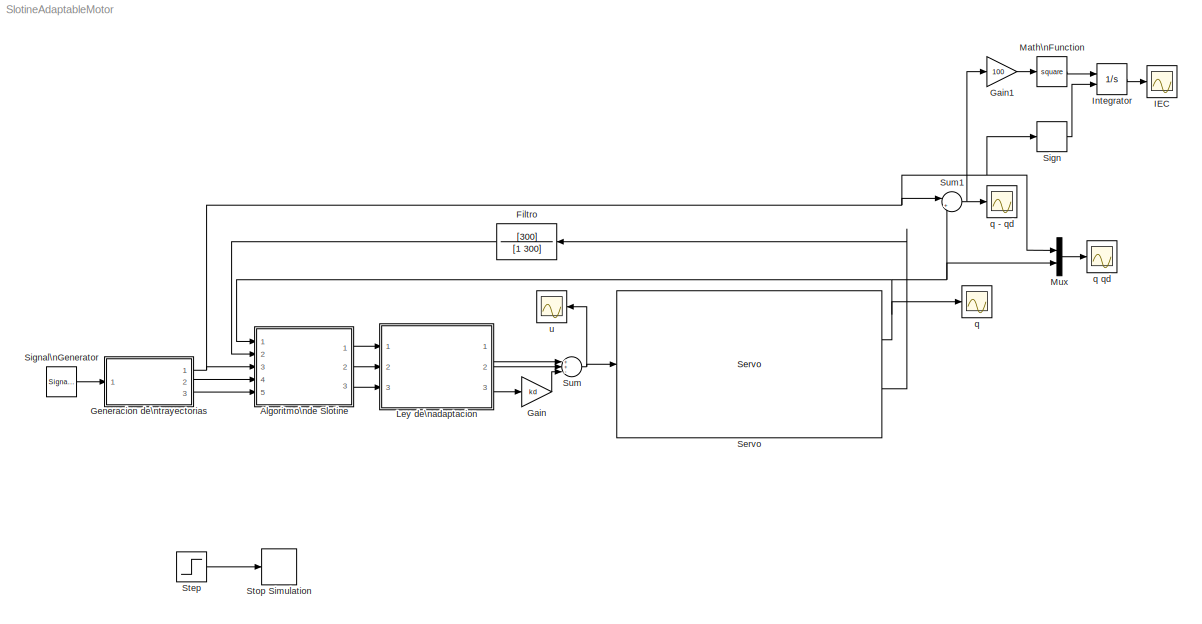
MODEL SlotineAdaptableMotor
KIND model
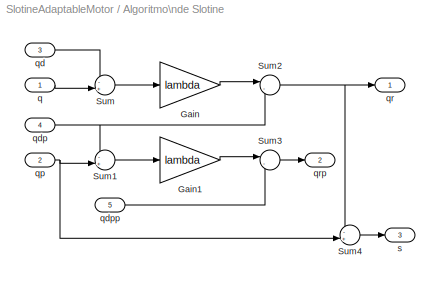
BLOCK [SubSystem] Algoritmo\nde Slotine
  FunctionWithSeparateData = off
  MaskHideContents = off
  MinAlgLoopOccurrences = off
  Ports = [5, 3]
  RTWSystemCode = Auto
BLOCK [Gain] Algoritmo\nde Slotine/Gain
  Gain = lambda
  OutDataTypeMode = Inherit via internal rule
  ParameterDataTypeMode = Inherit via internal rule
  SaturateOnIntegerOverflow = off
BLOCK [Gain] Algoritmo\nde Slotine/Gain1
  Gain = lambda
  OutDataTypeMode = Inherit via internal rule
  ParameterDataTypeMode = Inherit via internal rule
  SaturateOnIntegerOverflow = off
BLOCK [Sum] Algoritmo\nde Slotine/Sum
  CollapseMode = All dimensions
  IconShape = round
  InputSameDT = off
  Inputs = -+|
  OutDataTypeMode = Inherit via internal rule
  Ports = [2, 1]
  SaturateOnIntegerOverflow = off
BLOCK [Sum] Algoritmo\nde Slotine/Sum1
  CollapseMode = All dimensions
  IconShape = round
  InputSameDT = off
  Inputs = -+|
  OutDataTypeMode = Inherit via internal rule
  Ports = [2, 1]
  SaturateOnIntegerOverflow = off
BLOCK [Sum] Algoritmo\nde Slotine/Sum2
  CollapseMode = All dimensions
  IconShape = round
  InputSameDT = off
  Inputs = |-+
  OutDataTypeMode = Inherit via internal rule
  Ports = [2, 1]
  SaturateOnIntegerOverflow = off
BLOCK [Sum] Algoritmo\nde Slotine/Sum3
  CollapseMode = All dimensions
  IconShape = round
  InputSameDT = off
  Inputs = |-+
  OutDataTypeMode = Inherit via internal rule
  Ports = [2, 1]
  SaturateOnIntegerOverflow = off
BLOCK [Sum] Algoritmo\nde Slotine/Sum4
  CollapseMode = All dimensions
  IconShape = round
  InputSameDT = off
  Inputs = -+|
  OutDataTypeMode = Inherit via internal rule
  Ports = [2, 1]
  SaturateOnIntegerOverflow = off
BLOCK [Inport] Algoritmo\nde Slotine/q
  IconDisplay = Port number
BLOCK [Inport] Algoritmo\nde Slotine/qd
  IconDisplay = Port number
  Port = 3
BLOCK [Inport] Algoritmo\nde Slotine/qdp
  IconDisplay = Port number
  Port = 4
BLOCK [Inport] Algoritmo\nde Slotine/qdpp
  IconDisplay = Port number
  Port = 5
BLOCK [Inport] Algoritmo\nde Slotine/qp
  IconDisplay = Port number
  Port = 2
BLOCK [Outport] Algoritmo\nde Slotine/qr
  BusOutputAsStruct = off
  IconDisplay = Port number
BLOCK [Outport] Algoritmo\nde Slotine/qrp
  BusOutputAsStruct = off
  IconDisplay = Port number
  Port = 2
BLOCK [Outport] Algoritmo\nde Slotine/s
  BusOutputAsStruct = off
  IconDisplay = Port number
  Port = 3
BLOCK [TransferFcn] Filtro
  Denominator = [1 300]
  Numerator = [300]
BLOCK [Gain] Gain
  Gain = kd
  OutDataTypeMode = Inherit via internal rule
  ParameterDataTypeMode = Inherit via internal rule
  SaturateOnIntegerOverflow = off
BLOCK [Gain] Gain1
  Gain = 100
  OutDataTypeMode = Inherit via internal rule
  ParameterDataTypeMode = Inherit via internal rule
  SaturateOnIntegerOverflow = off
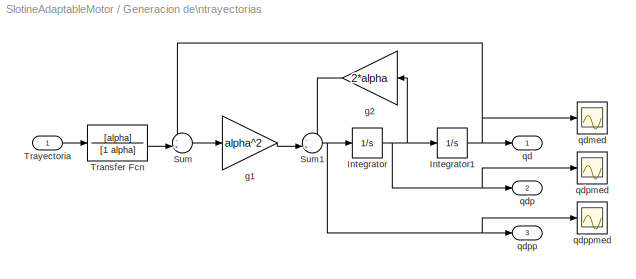
BLOCK [SubSystem] Generacion de\ntrayectorias
  FunctionWithSeparateData = off
  MaskHideContents = off
  MinAlgLoopOccurrences = off
  Ports = [1, 3]
  RTWSystemCode = Auto
BLOCK [Integrator] Generacion de\ntrayectorias/Integrator
  IgnoreLimit = off
  Ports = [1, 1]
BLOCK [Integrator] Generacion de\ntrayectorias/Integrator1
  IgnoreLimit = off
  Ports = [1, 1]
BLOCK [Sum] Generacion de\ntrayectorias/Sum
  CollapseMode = All dimensions
  IconShape = round
  InputSameDT = off
  Inputs = -+|
  OutDataTypeMode = Inherit via internal rule
  Ports = [2, 1]
  SaturateOnIntegerOverflow = off
BLOCK [Sum] Generacion de\ntrayectorias/Sum1
  CollapseMode = All dimensions
  IconShape = round
  InputSameDT = off
  Inputs = -+|
  OutDataTypeMode = Inherit via internal rule
  Ports = [2, 1]
  SaturateOnIntegerOverflow = off
BLOCK [TransferFcn] Generacion de\ntrayectorias/Transfer Fcn
  Denominator = [1 alpha]
  Numerator = [alpha]
BLOCK [Inport] Generacion de\ntrayectorias/Trayectoria
  IconDisplay = Port number
BLOCK [Gain] Generacion de\ntrayectorias/g1
  Gain = alpha^2
  OutDataTypeMode = Inherit via internal rule
  ParameterDataTypeMode = Inherit via internal rule
  SaturateOnIntegerOverflow = off
BLOCK [Gain] Generacion de\ntrayectorias/g2
  Gain = 2*alpha
  OutDataTypeMode = Inherit via internal rule
  ParameterDataTypeMode = Inherit via internal rule
  SaturateOnIntegerOverflow = off
BLOCK [Outport] Generacion de\ntrayectorias/qd
  BusOutputAsStruct = off
  IconDisplay = Port number
BLOCK [Scope] Generacion de\ntrayectorias/qdmed
  DataFormat = StructureWithTime
  Floating = off
  NumInputPorts = 1
  Ports = [1]
  SampleTime = 0
  SaveName = ScopeData5
BLOCK [Outport] Generacion de\ntrayectorias/qdp
  BusOutputAsStruct = off
  IconDisplay = Port number
  Port = 2
BLOCK [Scope] Generacion de\ntrayectorias/qdpmed
  DataFormat = StructureWithTime
  Floating = off
  NumInputPorts = 1
  Ports = [1]
  SampleTime = 0
  SaveName = ScopeData6
BLOCK [Outport] Generacion de\ntrayectorias/qdpp
  BusOutputAsStruct = off
  IconDisplay = Port number
  Port = 3
BLOCK [Scope] Generacion de\ntrayectorias/qdppmed
  DataFormat = StructureWithTime
  Floating = off
  NumInputPorts = 1
  Ports = [1]
  SampleTime = 0
  SaveName = ScopeData7
BLOCK [Scope] IEC
  DataFormat = StructureWithTime
  Floating = off
  NumInputPorts = 1
  Ports = [1]
  SampleTime = 0
  SaveName = ScopeData9
BLOCK [Integrator] Integrator
  ExternalReset = rising
  IgnoreLimit = off
  Ports = [2, 1]
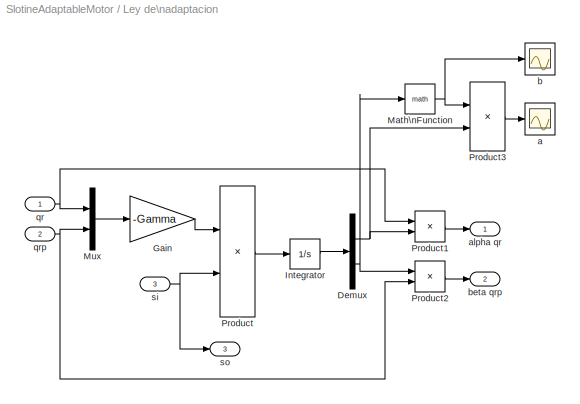
BLOCK [SubSystem] Ley de\nadaptacion
  FunctionWithSeparateData = off
  MaskHideContents = off
  MinAlgLoopOccurrences = off
  Ports = [3, 3]
  RTWSystemCode = Auto
BLOCK [Demux] Ley de\nadaptacion/Demux
  DisplayOption = bar
  Outputs = 2
  Ports = [1, 2]
BLOCK [Gain] Ley de\nadaptacion/Gain
  Gain = -Gamma
  OutDataTypeMode = Inherit via internal rule
  ParameterDataTypeMode = Inherit via internal rule
  SaturateOnIntegerOverflow = off
BLOCK [Integrator] Ley de\nadaptacion/Integrator
  IgnoreLimit = off
  Ports = [1, 1]
BLOCK [Math] Ley de\nadaptacion/Math\nFunction
  Ports = [1, 1]
BLOCK [Mux] Ley de\nadaptacion/Mux
  DisplayOption = bar
  Inputs = 2
  Ports = [2, 1]
BLOCK [Product] Ley de\nadaptacion/Product
  CollapseMode = All dimensions
  InputSameDT = off
  OutDataTypeMode = Inherit via internal rule
  Ports = [2, 1]
  SaturateOnIntegerOverflow = off
BLOCK [Product] Ley de\nadaptacion/Product1
  CollapseMode = All dimensions
  InputSameDT = off
  OutDataTypeMode = Inherit via internal rule
  Ports = [2, 1]
  SaturateOnIntegerOverflow = off
BLOCK [Product] Ley de\nadaptacion/Product2
  CollapseMode = All dimensions
  InputSameDT = off
  OutDataTypeMode = Inherit via internal rule
  Ports = [2, 1]
  SaturateOnIntegerOverflow = off
BLOCK [Product] Ley de\nadaptacion/Product3
  CollapseMode = All dimensions
  InputSameDT = off
  OutDataTypeMode = Inherit via internal rule
  Ports = [2, 1]
  SaturateOnIntegerOverflow = off
BLOCK [Scope] Ley de\nadaptacion/a
  DataFormat = StructureWithTime
  Floating = off
  NumInputPorts = 1
  Ports = [1]
  SampleTime = 0
  SaveName = ScopeData1
BLOCK [Outport] Ley de\nadaptacion/alpha qr
  BusOutputAsStruct = off
  IconDisplay = Port number
BLOCK [Scope] Ley de\nadaptacion/b
  DataFormat = StructureWithTime
  Floating = off
  NumInputPorts = 1
  Ports = [1]
  SampleTime = 0
BLOCK [Outport] Ley de\nadaptacion/beta qrp
  BusOutputAsStruct = off
  IconDisplay = Port number
  Port = 2
BLOCK [Inport] Ley de\nadaptacion/qr
  IconDisplay = Port number
BLOCK [Inport] Ley de\nadaptacion/qrp
  IconDisplay = Port number
  Port = 2
BLOCK [Inport] Ley de\nadaptacion/si
  IconDisplay = Port number
  Port = 3
BLOCK [Outport] Ley de\nadaptacion/so
  BusOutputAsStruct = off
  IconDisplay = Port number
  Port = 3
BLOCK [Math] Math\nFunction
  Operator = square
  Ports = [1, 1]
BLOCK [Mux] Mux
  DisplayOption = bar
  Inputs = 2
  Ports = [2, 1]
BLOCK [Reference] Servo  REF=Plantilla_Servo_2014/Servo
  FunctionWithSeparateData = off
  Ports = [1, 2]
  RTWMemSecDataConstants = Inherit from model
  RTWMemSecDataInternal = Inherit from model
  RTWMemSecDataParameters = Inherit from model
  RTWMemSecFuncExecute = Inherit from model
  RTWMemSecFuncInitTerm = Inherit from model
  ShowPortLabels = FromPortIcon
  SourceBlock = Plantilla_Servo_2014/Servo
  SourceType = SubSystem
  SystemSampleTime = -1
BLOCK [Signum] Sign
BLOCK [SignalGenerator] Signal\nGenerator
  Amplitude = 0.5
  Frequency = 0.5
  Ports = [0, 1]
BLOCK [Step] Step
  SampleTime = 0
  Time = 10
BLOCK [Stop] Stop Simulation
BLOCK [Sum] Sum
  CollapseMode = All dimensions
  IconShape = round
  InputSameDT = off
  Inputs = ++-
  OutDataTypeMode = Inherit via internal rule
  Ports = [3, 1]
  SaturateOnIntegerOverflow = off
BLOCK [Sum] Sum1
  CollapseMode = All dimensions
  IconShape = round
  InputSameDT = off
  Inputs = |+-
  OutDataTypeMode = Inherit via internal rule
  Ports = [2, 1]
  SaturateOnIntegerOverflow = off
BLOCK [Scope] q
  DataFormat = StructureWithTime
  Floating = off
  NumInputPorts = 1
  Ports = [1]
  SampleTime = 0
  SaveName = ScopeData8
BLOCK [Scope] q - qd
  DataFormat = StructureWithTime
  Floating = off
  NumInputPorts = 1
  Ports = [1]
  SampleTime = 0
  SaveName = ScopeData2
BLOCK [Scope] q qd
  DataFormat = StructureWithTime
  Floating = off
  NumInputPorts = 1
  Ports = [1]
  SampleTime = 0
  SaveName = ScopeData4
BLOCK [Scope] u
  DataFormat = StructureWithTime
  Floating = off
  NumInputPorts = 1
  Ports = [1]
  SampleTime = 0
  SaveName = ScopeData3
LINE Algoritmo\nde Slotine/Gain1:1 -> Algoritmo\nde Slotine/Sum3:1
LINE Algoritmo\nde Slotine/Gain:1 -> Algoritmo\nde Slotine/Sum2:1
LINE Algoritmo\nde Slotine/Sum1:1 -> Algoritmo\nde Slotine/Gain1:1
NET Algoritmo\nde Slotine/Sum2:1 -> Algoritmo\nde Slotine/Sum4:1, Algoritmo\nde Slotine/qr:1
LINE Algoritmo\nde Slotine/Sum3:1 -> Algoritmo\nde Slotine/qrp:1
LINE Algoritmo\nde Slotine/Sum4:1 -> Algoritmo\nde Slotine/s:1
LINE Algoritmo\nde Slotine/Sum:1 -> Algoritmo\nde Slotine/Gain:1
LINE Algoritmo\nde Slotine/q:1 -> Algoritmo\nde Slotine/Sum:2
LINE Algoritmo\nde Slotine/qd:1 -> Algoritmo\nde Slotine/Sum:1
NET Algoritmo\nde Slotine/qdp:1 -> Algoritmo\nde Slotine/Sum1:1, Algoritmo\nde Slotine/Sum2:2
LINE Algoritmo\nde Slotine/qdpp:1 -> Algoritmo\nde Slotine/Sum3:2
NET Algoritmo\nde Slotine/qp:1 -> Algoritmo\nde Slotine/Sum1:2, Algoritmo\nde Slotine/Sum4:2
LINE Algoritmo\nde Slotine:1 -> Ley de\nadaptacion:1
LINE Algoritmo\nde Slotine:2 -> Ley de\nadaptacion:2
LINE Algoritmo\nde Slotine:3 -> Ley de\nadaptacion:3
LINE Filtro:1 -> Algoritmo\nde Slotine:2
LINE Gain1:1 -> Math\nFunction:1
LINE Gain:1 -> Sum:3
NET Generacion de\ntrayectorias/Integrator1:1 -> Generacion de\ntrayectorias/Sum:1, Generacion de\ntrayectorias/qd:1, Generacion de\ntrayectorias/qdmed:1
NET Generacion de\ntrayectorias/Integrator:1 -> Generacion de\ntrayectorias/Integrator1:1, Generacion de\ntrayectorias/g2:1, Generacion de\ntrayectorias/qdp:1, Generacion de\ntrayectorias/qdpmed:1
NET Generacion de\ntrayectorias/Sum1:1 -> Generacion de\ntrayectorias/Integrator:1, Generacion de\ntrayectorias/qdpp:1, Generacion de\ntrayectorias/qdppmed:1
LINE Generacion de\ntrayectorias/Sum:1 -> Generacion de\ntrayectorias/g1:1
LINE Generacion de\ntrayectorias/Transfer Fcn:1 -> Generacion de\ntrayectorias/Sum:2
LINE Generacion de\ntrayectorias/Trayectoria:1 -> Generacion de\ntrayectorias/Transfer Fcn:1
LINE Generacion de\ntrayectorias/g1:1 -> Generacion de\ntrayectorias/Sum1:2
LINE Generacion de\ntrayectorias/g2:1 -> Generacion de\ntrayectorias/Sum1:1
NET Generacion de\ntrayectorias:1 -> Algoritmo\nde Slotine:3, Mux:1, Sign:1, Sum1:1
LINE Generacion de\ntrayectorias:2 -> Algoritmo\nde Slotine:4
LINE Generacion de\ntrayectorias:3 -> Algoritmo\nde Slotine:5
LINE Integrator:1 -> IEC:1
NET Ley de\nadaptacion/Demux:1 -> Ley de\nadaptacion/Product1:2, Ley de\nadaptacion/Product3:2
NET Ley de\nadaptacion/Demux:2 -> Ley de\nadaptacion/Math\nFunction:1, Ley de\nadaptacion/Product2:1
LINE Ley de\nadaptacion/Gain:1 -> Ley de\nadaptacion/Product:1
LINE Ley de\nadaptacion/Integrator:1 -> Ley de\nadaptacion/Demux:1
NET Ley de\nadaptacion/Math\nFunction:1 -> Ley de\nadaptacion/Product3:1, Ley de\nadaptacion/b:1
LINE Ley de\nadaptacion/Mux:1 -> Ley de\nadaptacion/Gain:1
LINE Ley de\nadaptacion/Product1:1 -> Ley de\nadaptacion/alpha qr:1
LINE Ley de\nadaptacion/Product2:1 -> Ley de\nadaptacion/beta qrp:1
LINE Ley de\nadaptacion/Product3:1 -> Ley de\nadaptacion/a:1
LINE Ley de\nadaptacion/Product:1 -> Ley de\nadaptacion/Integrator:1
NET Ley de\nadaptacion/qr:1 -> Ley de\nadaptacion/Mux:1, Ley de\nadaptacion/Product1:1
NET Ley de\nadaptacion/qrp:1 -> Ley de\nadaptacion/Mux:2, Ley de\nadaptacion/Product2:2
NET Ley de\nadaptacion/si:1 -> Ley de\nadaptacion/Product:2, Ley de\nadaptacion/so:1
LINE Ley de\nadaptacion:1 -> Sum:1
LINE Ley de\nadaptacion:2 -> Sum:2
LINE Ley de\nadaptacion:3 -> Gain:1
LINE Math\nFunction:1 -> Integrator:1
LINE Mux:1 -> q qd:1
NET Servo:1 -> Algoritmo\nde Slotine:1, Mux:2, Sum1:2, q:1
LINE Servo:2 -> Filtro:1
LINE Sign:1 -> Integrator:2
LINE Signal\nGenerator:1 -> Generacion de\ntrayectorias:1
LINE Step:1 -> Stop Simulation:1
NET Sum1:1 -> Gain1:1, q - qd:1
NET Sum:1 -> Servo:1, u:1
note: NET lines group one-source signal fan-out (src -> all destinations, sorted); 1:1 wires keep LINE
